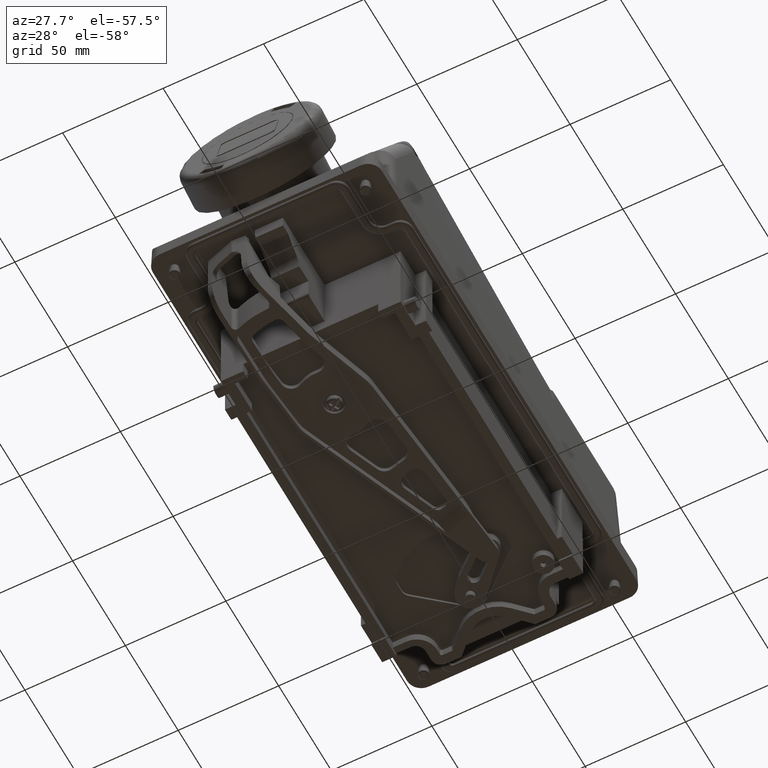
[diagram: clean part render]
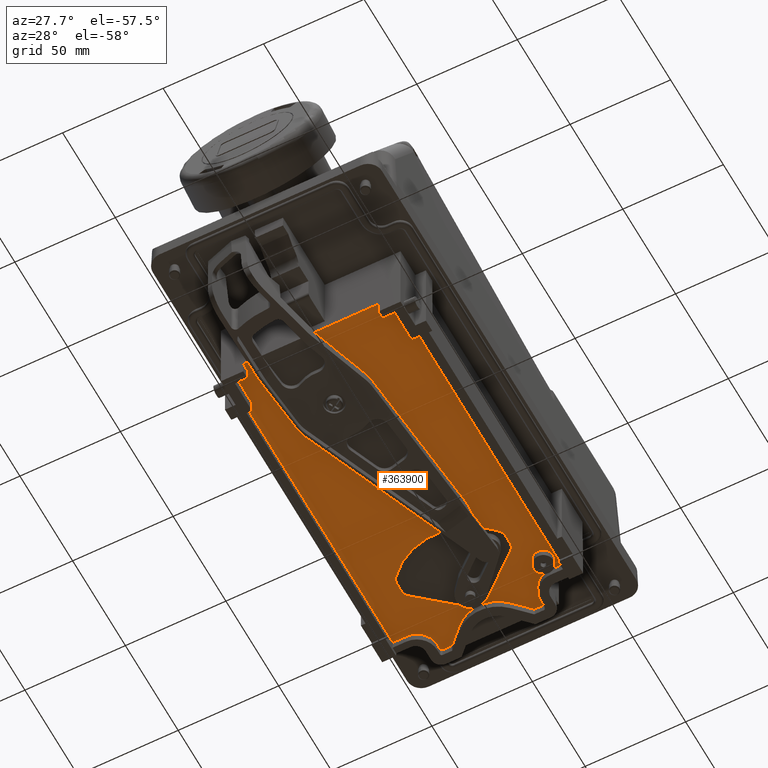
[diagram: same view with one face highlighted and labeled with its STEP entity id]
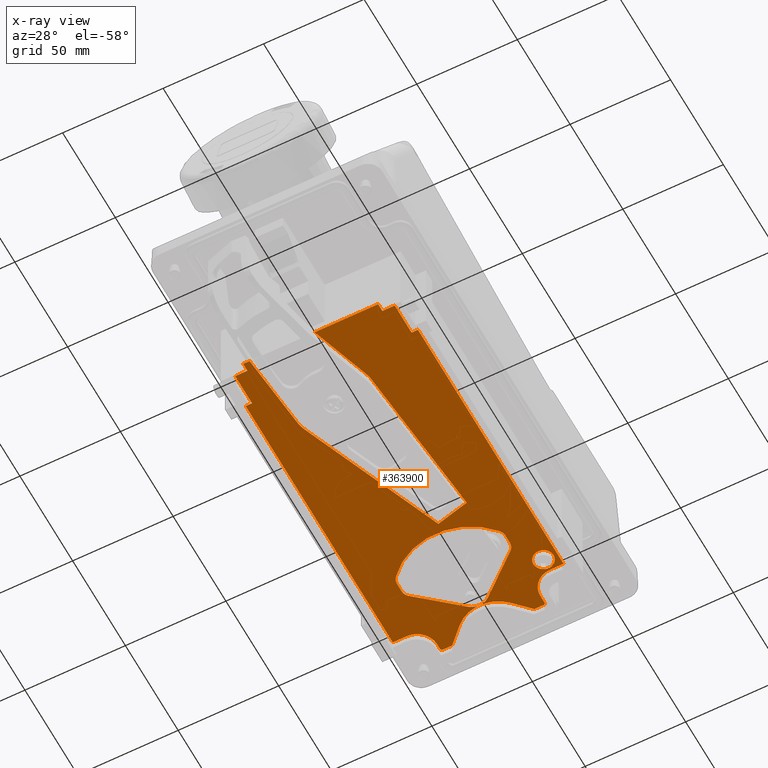
[diagram: x-ray of the same camera — body ghosted, the highlighted face saturated]
A machine part, auxiliary view. The second image highlights one B-rep face of the part: STEP entity #363900.
The next image is the same camera in x-ray: the body ghosted, the highlighted face saturated — about 0% of this face is hidden behind the body in this view.
In plain terms, the highlighted planar face has unit normal (-0, 0, -1).
Its self-contained STEP definition (entity closure, byte-faithful):
#333750=CARTESIAN_POINT('',(246.965079230504,157.433593340712,
-55.099987075025));
#333760=VERTEX_POINT('',#333750);
#333920=CARTESIAN_POINT('',(236.971170960314,147.43968507052,
-55.0999876456064));
#333930=VERTEX_POINT('',#333920);
#333960=CARTESIAN_POINT('',(236.958983787516,157.445780513508,
-55.099987074328));
#333970=DIRECTION('',(-1.13686833753624E-13,5.70930396309293E-8,
-0.999999999999999));
#333980=DIRECTION('',(-0.707106781186547,0.707106781186547,
4.03709558703135E-8));
#333990=AXIS2_PLACEMENT_3D('',#333960,#333970,#333980);
#334000=ELLIPSE('',#333990,10.0121871750572,10.);
#334010=EDGE_CURVE('',#333760,#333930,#334000,.T.);
#334180=CARTESIAN_POINT('',(247.965688774803,160.034313217746,
-55.0999869265421));
#334190=DIRECTION('',(-1.13686833753624E-13,5.70930396309293E-8,
-0.999999999999999));
#334200=DIRECTION('',(-0.7071067811863,0.707106781186794,
4.03709558703277E-8));
#334210=AXIS2_PLACEMENT_3D('',#334180,#334190,#334200);
#334220=ELLIPSE('',#334210,1.00121871750572,1.);
#334230=CARTESIAN_POINT('',(246.965079230504,160.035531935026,
-55.0999869264724));
#334240=VERTEX_POINT('',#334230);
#334250=CARTESIAN_POINT('',(247.964470057523,161.034922762045,
-55.0999868694142));
#334260=VERTEX_POINT('',#334250);
#334270=EDGE_CURVE('',#334240,#334260,#334220,.T.);
#339440=CARTESIAN_POINT('',(246.965079230513,64.999997299296,
-55.0999923523399));
#339450=DIRECTION('',(-9.43978205359926E-14,0.999999999999999,
5.70930396309293E-8));
#339460=VECTOR('',#339450,1.);
#339470=LINE('',#339440,#339460);
#339480=EDGE_CURVE('',#333760,#334240,#339470,.T.);
#339790=CARTESIAN_POINT('',(230.13968307796,147.43968507052,
-55.0999876456057));
#339800=VERTEX_POINT('',#339790);
#339830=CARTESIAN_POINT('',(272.999999999996,147.43968507052,
-55.0999876456105));
#339840=DIRECTION('',(1.,1.46737043050207E-15,-1.13686833669847E-13));
#339850=VECTOR('',#339840,1.);
#339860=LINE('',#339830,#339850);
#339870=EDGE_CURVE('',#339800,#333930,#339860,.T.);
#354980=CARTESIAN_POINT('',(315.182653198421,84.3463649312023,
-55.0999912478048));
#354990=DIRECTION('',(-1.13686833753624E-13,5.70930396309293E-8,
-0.999999999999998));
#355000=DIRECTION('',(-1.,1.18329135783152E-30,1.13686833753624E-13));
#355010=AXIS2_PLACEMENT_3D('',#354980,#354990,#355000);
#355020=PLANE('',#355010);
#360440=CARTESIAN_POINT('',(250.02155199652,64.999997299296,
-55.0999923523403));
#360450=DIRECTION('',(-0.0958457525202243,-0.995396198367178,
-5.68301837089126E-8));
#360460=VECTOR('',#360450,1.);
#360470=LINE('',#360440,#360460);
#360480=CARTESIAN_POINT('',(246.230916743164,25.6327450072269,
-55.0999945999359));
#360490=VERTEX_POINT('',#360480);
#360500=CARTESIAN_POINT('',(242.608947136,-11.9828475753637,
-55.0999967475241));
#360510=VERTEX_POINT('',#360500);
#360520=EDGE_CURVE('',#360490,#360510,#360470,.T.);
#360530=ORIENTED_EDGE('',*,*,#360520,.T.);
#360540=CARTESIAN_POINT('',(266.14547015612,23.7131493491701,
-55.0999947095338));
#360550=DIRECTION('',(-1.13686833753624E-13,5.70930396309293E-8,
-0.999999999999999));
#360560=DIRECTION('',(-0.970571550954791,0.240812924232092,
1.37488521680294E-8));
#360570=AXIS2_PLACEMENT_3D('',#360540,#360550,#360560);
#360580=ELLIPSE('',#360570,20.0070065686382,19.9999999999999);
#360590=CARTESIAN_POINT('',(247.643321584234,31.3252964412703,
-55.099994274931));
#360600=VERTEX_POINT('',#360590);
#360610=EDGE_CURVE('',#360490,#360600,#360580,.T.);
#360620=ORIENTED_EDGE('',*,*,#360610,.F.);
#360630=CARTESIAN_POINT('',(261.501755463383,64.9999972992961,
-55.0999923523416));
#360640=DIRECTION('',(0.380570892416668,0.924751748224992,
5.27968449545856E-8));
#360650=VECTOR('',#360640,1.);
#360660=LINE('',#360630,#360650);
#360670=CARTESIAN_POINT('',(276.704100675635,101.940277263635,
-55.0999902433104));
#360680=VERTEX_POINT('',#360670);
#360690=EDGE_CURVE('',#360600,#360680,#360660,.T.);
#360700=ORIENTED_EDGE('',*,*,#360690,.F.);
#360710=CARTESIAN_POINT('',(272.999999999996,102.854930285467,
-55.0999901910897));
#360720=DIRECTION('',(-0.970839767575187,0.239729317553269,
1.36869857895501E-8));
#360730=VECTOR('',#360720,1.);
#360740=LINE('',#360710,#360730);
#360750=CARTESIAN_POINT('',(292.922399878943,97.9354950846003,
-55.0999904719575));
#360760=VERTEX_POINT('',#360750);
#360770=EDGE_CURVE('',#360760,#360680,#360740,.T.);
#360780=ORIENTED_EDGE('',*,*,#360770,.T.);
#360790=CARTESIAN_POINT('',(289.825270402863,64.9999972992961,
-55.0999923523448));
#360800=DIRECTION('',(-0.0936231778624256,-0.995607704152061,
-5.68422594642578E-8));
#360810=VECTOR('',#360800,1.);
#360820=LINE('',#360790,#360810);
#360830=CARTESIAN_POINT('',(285.772820692969,21.9054320006413,
-55.0999948127441));
#360840=VERTEX_POINT('',#360830);
#360850=EDGE_CURVE('',#360760,#360840,#360820,.T.);
#360860=ORIENTED_EDGE('',*,*,#360850,.F.);
#360870=CARTESIAN_POINT('',(265.853988562439,23.7801079832119,
-55.0999947057109));
#360880=DIRECTION('',(-1.13686833753624E-13,5.70930396309293E-8,
-0.999999999999999));
#360890=DIRECTION('',(-0.978379084729027,0.206819647434163,
1.18080735562339E-8));
#360900=AXIS2_PLACEMENT_3D('',#360870,#360880,#360890);
#360910=ELLIPSE('',#360900,20.0069466076446,19.9999999999999);
#360920=CARTESIAN_POINT('',(284.827463775304,17.4333354309106,
-55.0999950680695));
#360930=VERTEX_POINT('',#360920);
#360940=EDGE_CURVE('',#360840,#360930,#360910,.T.);
#360950=ORIENTED_EDGE('',*,*,#360940,.F.);
#360960=CARTESIAN_POINT('',(300.743046200804,64.9999972992961,
-55.099992352346));
#360970=DIRECTION('',(-0.317304656405091,-0.948323655206199,
-5.4142643964838E-8));
#360980=VECTOR('',#360970,1.);
#360990=LINE('',#360960,#360980);
#361000=CARTESIAN_POINT('',(274.984946623788,-11.9828475753637,
-55.0999967475277));
#361010=VERTEX_POINT('',#361000);
#361020=EDGE_CURVE('',#360930,#361010,#360990,.T.);
#361030=ORIENTED_EDGE('',*,*,#361020,.F.);
#361040=CARTESIAN_POINT('',(272.999999999996,-11.9828475753637,
-55.0999967475275));
#361050=DIRECTION('',(-1.,1.97215226305253E-31,1.13686833753624E-13));
#361060=VECTOR('',#361050,1.);
#361070=LINE('',#361040,#361060);
#361080=CARTESIAN_POINT('',(306.569841538969,-11.9828475753637,
-55.0999967475313));
#361090=VERTEX_POINT('',#361080);
#361100=EDGE_CURVE('',#361090,#361010,#361070,.T.);
#361110=ORIENTED_EDGE('',*,*,#361100,.T.);
#361120=CARTESIAN_POINT('',(306.569841538969,64.9999972992961,
-55.0999923523467));
#361130=DIRECTION('',(-6.48816615676213E-21,-0.999999999999999,
-5.70930396309293E-8));
#361140=VECTOR('',#361130,1.);
#361150=LINE('',#361120,#361140);
#361160=CARTESIAN_POINT('',(306.569841538969,-7.98284757536365,
-55.0999965191616));
#361170=VERTEX_POINT('',#361160);
#361180=EDGE_CURVE('',#361170,#361090,#361150,.T.);
#361190=ORIENTED_EDGE('',*,*,#361180,.T.);
#361200=CARTESIAN_POINT('',(312.699999999996,-7.98284757536364,
-55.0999965191623));
#361210=DIRECTION('',(-1.,3.94430452610506E-31,1.13686833753624E-13));
#361220=VECTOR('',#361210,1.);
#361230=LINE('',#361200,#361220);
#361240=CARTESIAN_POINT('',(312.699999999996,-7.98284757536365,
-55.0999965191623));
#361250=VERTEX_POINT('',#361240);
#361260=EDGE_CURVE('',#361250,#361170,#361230,.T.);
#361270=ORIENTED_EDGE('',*,*,#361260,.T.);
#361280=CARTESIAN_POINT('',(312.699999999996,10.7033878673627,
-55.0999954523078));
#361290=DIRECTION('',(-6.49073014343907E-21,-0.999999999999999,
-5.70930681183662E-8));
#361300=VECTOR('',#361290,1.);
#361310=LINE('',#361280,#361300);
#361320=CARTESIAN_POINT('',(312.699999999996,8.00000199255162,
-55.0999956066524));
#361330=VERTEX_POINT('',#361320);
#361340=EDGE_CURVE('',#361330,#361250,#361310,.T.);
#361350=ORIENTED_EDGE('',*,*,#361340,.T.);
#361360=CARTESIAN_POINT('',(272.999999999996,8.00000199255161,
-55.0999956066459));
#361370=DIRECTION('',(-1.,1.77493703674728E-30,1.13686833753624E-13));
#361380=VECTOR('',#361370,1.);
#361390=LINE('',#361360,#361380);
#361400=CARTESIAN_POINT('',(315.860316922027,8.00000199255161,
-55.0999956066508));
#361410=VERTEX_POINT('',#361400);
#361420=EDGE_CURVE('',#361410,#361330,#361390,.T.);
#361430=ORIENTED_EDGE('',*,*,#361420,.T.);
#361440=CARTESIAN_POINT('',(315.860316922027,64.9999972992961,
-55.0999923523478));
#361450=DIRECTION('',(1.56307688532937E-16,0.999999999999999,
5.70930396309293E-8));
#361460=VECTOR('',#361450,1.);
#361470=LINE('',#361440,#361460);
#361480=CARTESIAN_POINT('',(315.860316922027,146.034922762045,
-55.0999877258176));
#361490=VERTEX_POINT('',#361480);
#361500=EDGE_CURVE('',#361410,#361490,#361470,.T.);
#361510=ORIENTED_EDGE('',*,*,#361500,.F.);
#361520=CARTESIAN_POINT('',(272.999999999996,146.034922762045,
-55.0999877258127));
#361530=DIRECTION('',(1.,7.40077285064861E-19,-1.13686833753582E-13));
#361540=VECTOR('',#361530,1.);
#361550=LINE('',#361520,#361540);
#361560=CARTESIAN_POINT('',(309.028829039677,146.034922762045,
-55.0999877258168));
#361570=VERTEX_POINT('',#361560);
#361580=EDGE_CURVE('',#361570,#361490,#361550,.T.);
#361590=ORIENTED_EDGE('',*,*,#361580,.T.);
#361600=CARTESIAN_POINT('',(309.041016212475,156.041018205033,
-55.0999871545384));
#361610=DIRECTION('',(-1.13686833753624E-13,5.70930396309293E-8,
-0.999999999999999));
#361620=DIRECTION('',(0.707106781186249,0.707106781186845,
4.03707950928684E-8));
#361630=AXIS2_PLACEMENT_3D('',#361600,#361610,#361620);
#361640=ELLIPSE('',#361630,10.0121871750572,10.);
#361650=CARTESIAN_POINT('',(299.034920769486,156.028831032236,
-55.099987155233));
#361660=VERTEX_POINT('',#361650);
#361670=EDGE_CURVE('',#361570,#361660,#361640,.T.);
#361680=ORIENTED_EDGE('',*,*,#361670,.F.);
#361690=CARTESIAN_POINT('',(299.034920769486,64.9999972992961,
-55.0999923523459));
#361700=DIRECTION('',(-4.5649801101243E-18,-0.999999999999999,
-5.70930396309293E-8));
#361710=VECTOR('',#361700,1.);
#361720=LINE('',#361690,#361710);
#361730=CARTESIAN_POINT('',(299.034920769486,160.035531935026,
-55.0999869264783));
#361740=VERTEX_POINT('',#361730);
#361750=EDGE_CURVE('',#361740,#361660,#361720,.T.);
#361760=ORIENTED_EDGE('',*,*,#361750,.T.);
#361770=CARTESIAN_POINT('',(298.034311225188,160.034313217746,
-55.0999869265478));
#361780=DIRECTION('',(-1.13686833753624E-13,5.70930396309293E-8,
-0.999999999999999));
#361790=DIRECTION('',(0.707106781186268,0.707106781186827,
4.03707950928673E-8));
#361800=AXIS2_PLACEMENT_3D('',#361770,#361780,#361790);
#361810=ELLIPSE('',#361800,1.00121871750572,1.);
#361820=CARTESIAN_POINT('',(298.035529942467,161.034922762045,
-55.0999868694199));
#361830=VERTEX_POINT('',#361820);
#361840=EDGE_CURVE('',#361830,#361740,#361810,.T.);
#361850=ORIENTED_EDGE('',*,*,#361840,.T.);
#361860=CARTESIAN_POINT('',(272.999999999996,161.034922762045,
-55.0999868694171));
#361870=DIRECTION('',(1.,1.46811050778714E-15,-1.13686833669805E-13));
#361880=VECTOR('',#361870,1.);
#361890=LINE('',#361860,#361880);
#361900=CARTESIAN_POINT('',(293.855340701042,161.034922762045,
-55.0999868694195));
#361910=VERTEX_POINT('',#361900);
#361920=EDGE_CURVE('',#361910,#361830,#361890,.T.);
#361930=ORIENTED_EDGE('',*,*,#361920,.T.);
#361940=CARTESIAN_POINT('',(293.855845510268,160.034313217746,
-55.0999869265473));
#361950=DIRECTION('',(-1.13686833753624E-13,5.70930396309293E-8,
-0.999999999999999));
#361960=DIRECTION('',(-0.382683432364957,0.923879532511341,
5.27471342699423E-8));
#361970=AXIS2_PLACEMENT_3D('',#361940,#361950,#361960);
#361980=ELLIPSE('',#361970,1.00071408825133,1.);
#361990=CARTESIAN_POINT('',(293.148664670201,160.742207965867,
-55.0999868861313));
#362000=VERTEX_POINT('',#361990);
#362010=EDGE_CURVE('',#362000,#361910,#361980,.T.);
#362020=ORIENTED_EDGE('',*,*,#362010,.T.);
#362030=CARTESIAN_POINT('',(272.999999999996,140.593543295661,
-55.0999880364776));
#362040=DIRECTION('',(0.707106781186546,0.707106781186548,
4.0370795124849E-8));
#362050=VECTOR('',#362040,1.);
#362060=LINE('',#362030,#362050);
#362070=CARTESIAN_POINT('',(285.703229348442,153.296772644107,
-55.099987311213));
#362080=VERTEX_POINT('',#362070);
#362090=EDGE_CURVE('',#362080,#362000,#362060,.T.);
#362100=ORIENTED_EDGE('',*,*,#362090,.T.);
#362110=CARTESIAN_POINT('',(272.999999999996,166.000001992553,
-55.0999865859457));
#362120=DIRECTION('',(1.1366564071304E-13,-5.70930397643204E-8,
0.999999999999999));
#362130=DIRECTION('',(-1.,-1.4673704292921E-15,1.13665640629263E-13));
#362140=AXIS2_PLACEMENT_3D('',#362110,#362120,#362130);
#362150=CIRCLE('',#362140,17.9650792305082);
#362160=CARTESIAN_POINT('',(260.29677065155,153.296772644107,
-55.0999873112101));
#362170=VERTEX_POINT('',#362160);
#362180=EDGE_CURVE('',#362170,#362080,#362150,.T.);
#362190=ORIENTED_EDGE('',*,*,#362180,.T.);
#362200=CARTESIAN_POINT('',(272.999999999996,140.593543295661,
-55.0999880364776));
#362210=DIRECTION('',(0.707106781186548,-0.707106781186546,
-4.03709558715763E-8));
#362220=VECTOR('',#362210,1.);
#362230=LINE('',#362200,#362220);
#362240=CARTESIAN_POINT('',(252.85133532979,160.742207965867,
-55.0999868861268));
#362250=VERTEX_POINT('',#362240);
#362260=EDGE_CURVE('',#362250,#362170,#362230,.T.);
#362270=ORIENTED_EDGE('',*,*,#362260,.T.);
#362280=CARTESIAN_POINT('',(252.144154489724,160.034313217746,
-55.0999869265426));
#362290=DIRECTION('',(-1.13686833753624E-13,5.70930396309293E-8,
-0.999999999999999));
#362300=DIRECTION('',(0.382683432364955,0.923879532511341,
5.27470472578068E-8));
#362310=AXIS2_PLACEMENT_3D('',#362280,#362290,#362300);
#362320=ELLIPSE('',#362310,1.00071408825133,1.);
#362330=CARTESIAN_POINT('',(252.14465929895,161.034922762045,
-55.0999868694147));
#362340=VERTEX_POINT('',#362330);
#362350=EDGE_CURVE('',#362340,#362250,#362320,.T.);
#362360=ORIENTED_EDGE('',*,*,#362350,.T.);
#362370=EDGE_CURVE('',#334260,#362340,#361890,.T.);
#362380=ORIENTED_EDGE('',*,*,#362370,.T.);
#362390=ORIENTED_EDGE('',*,*,#334270,.T.);
#362400=ORIENTED_EDGE('',*,*,#339480,.T.);
#362410=ORIENTED_EDGE('',*,*,#334010,.F.);
#362420=ORIENTED_EDGE('',*,*,#339870,.T.);
#362430=CARTESIAN_POINT('',(230.13968307796,64.999997299296,
-55.099992352338));
#362440=DIRECTION('',(-1.88496064878781E-15,0.999999999999999,
5.70930396309293E-8));
#362450=VECTOR('',#362440,1.);
#362460=LINE('',#362430,#362450);
#362470=CARTESIAN_POINT('',(230.13968307796,8.00000199255162,
-55.099995606641));
#362480=VERTEX_POINT('',#362470);
#362490=EDGE_CURVE('',#362480,#339800,#362460,.T.);
#362500=ORIENTED_EDGE('',*,*,#362490,.T.);
#362510=CARTESIAN_POINT('',(272.999999999996,8.00000199255161,
-55.0999956066459));
#362520=DIRECTION('',(-1.,1.77493703674728E-30,1.13686833753624E-13));
#362530=VECTOR('',#362520,1.);
#362540=LINE('',#362510,#362530);
#362550=CARTESIAN_POINT('',(233.299999999996,8.00000199255161,
-55.0999956066434));
#362560=VERTEX_POINT('',#362550);
#362570=EDGE_CURVE('',#362560,#362480,#362540,.T.);
#362580=ORIENTED_EDGE('',*,*,#362570,.T.);
#362590=CARTESIAN_POINT('',(233.299999999996,-7.98284757536364,
-55.0999965191533));
#362600=DIRECTION('',(6.49073014343907E-21,0.999999999999999,
5.70930681183662E-8));
#362610=VECTOR('',#362600,1.);
#362620=LINE('',#362590,#362610);
#362630=CARTESIAN_POINT('',(233.299999999996,-7.98284757536364,
-55.0999965191533));
#362640=VERTEX_POINT('',#362630);
#362650=EDGE_CURVE('',#362640,#362560,#362620,.T.);
#362660=ORIENTED_EDGE('',*,*,#362650,.T.);
#362670=CARTESIAN_POINT('',(239.43015846101,-7.98284757536365,
-55.099996519154));
#362680=VERTEX_POINT('',#362670);
#362690=EDGE_CURVE('',#362680,#362640,#361230,.T.);
#362700=ORIENTED_EDGE('',*,*,#362690,.T.);
#362710=CARTESIAN_POINT('',(239.43015846101,64.999997299296,
-55.0999923523391));
#362720=DIRECTION('',(6.48816615676213E-21,0.999999999999999,
5.70930396309293E-8));
#362730=VECTOR('',#362720,1.);
#362740=LINE('',#362710,#362730);
#362750=CARTESIAN_POINT('',(239.43015846101,-11.9828475753637,
-55.0999967475237));
#362760=VERTEX_POINT('',#362750);
#362770=EDGE_CURVE('',#362760,#362680,#362740,.T.);
#362780=ORIENTED_EDGE('',*,*,#362770,.T.);
#362790=EDGE_CURVE('',#360510,#362760,#361070,.T.);
#362800=ORIENTED_EDGE('',*,*,#362790,.T.);
#362810=EDGE_LOOP('',(#362800,#362780,#362700,#362660,#362580,#362500,
#362420,#362410,#362400,#362390,#362380,#362360,#362270,#362190,#362100,
#362020,#361930,#361850,#361760,#361680,#361590,#361510,#361430,#361350,
#361270,#361190,#361110,#361030,#360950,#360860,#360780,#360700,#360620,
#360530));
#362820=FACE_OUTER_BOUND('',#362810,.T.);
#362830=CARTESIAN_POINT('',(308.999999999995,140.000001992553,
-55.0999880703687));
#362840=DIRECTION('',(1.13686833753624E-13,-5.70930680526388E-8,
0.999999999999999));
#362850=DIRECTION('',(1.,-4.53595020502082E-30,-1.13686833753624E-13));
#362860=AXIS2_PLACEMENT_3D('',#362830,#362840,#362850);
#362870=CIRCLE('',#362860,5.);
#362880=CARTESIAN_POINT('',(313.999999999995,140.000001992553,
-55.0999880703693));
#362890=VERTEX_POINT('',#362880);
#362900=CARTESIAN_POINT('',(303.999999999995,140.000001992553,
-55.0999880703682));
#362910=VERTEX_POINT('',#362900);
#362920=EDGE_CURVE('',#362890,#362910,#362870,.T.);
#362930=ORIENTED_EDGE('',*,*,#362920,.T.);
#362940=CARTESIAN_POINT('',(312.569841538979,136.499111907654,
-55.0999882702457));
#362950=VERTEX_POINT('',#362940);
#362960=EDGE_CURVE('',#362950,#362890,#362870,.T.);
#362970=ORIENTED_EDGE('',*,*,#362960,.T.);
#362980=EDGE_CURVE('',#362910,#362950,#362870,.T.);
#362990=ORIENTED_EDGE('',*,*,#362980,.T.);
#363000=EDGE_LOOP('',(#362990,#362970,#362930));
#363010=FACE_BOUND('',#363000,.T.);
#363020=CARTESIAN_POINT('',(272.999999999996,140.000001992553,
-55.0999880703647));
#363030=DIRECTION('',(1.13686833753624E-13,-5.70930396309293E-8,
0.999999999999999));
#363040=DIRECTION('',(1.,-3.54987407349455E-30,-1.13686833753624E-13));
#363050=AXIS2_PLACEMENT_3D('',#363020,#363030,#363040);
#363060=CIRCLE('',#363050,34.);
#363070=CARTESIAN_POINT('',(247.20689655172,117.847895670433,
-55.0999893350928));
#363080=VERTEX_POINT('',#363070);
#363090=CARTESIAN_POINT('',(298.793103448272,117.847895670432,
-55.0999893350987));
#363100=VERTEX_POINT('',#363090);
#363110=EDGE_CURVE('',#363080,#363100,#363060,.T.);
#363120=ORIENTED_EDGE('',*,*,#363110,.T.);
#363130=CARTESIAN_POINT('',(250.999999999996,121.105558364862,
-55.0999891491034));
#363140=DIRECTION('',(1.13686833753624E-13,-5.70930396309293E-8,
0.999999999999999));
#363150=DIRECTION('',(1.46736393977516E-15,-0.999999999999999,
-5.70930396309293E-8));
#363160=AXIS2_PLACEMENT_3D('',#363130,#363140,#363150);
#363170=CIRCLE('',#363160,5.);
#363180=CARTESIAN_POINT('',(245.999999999996,121.105558364862,
-55.0999891491028));
#363190=VERTEX_POINT('',#363180);
#363200=EDGE_CURVE('',#363190,#363080,#363170,.T.);
#363210=ORIENTED_EDGE('',*,*,#363200,.T.);
#363220=CARTESIAN_POINT('',(245.999999999996,64.9999972422028,
-55.0999923523398));
#363230=DIRECTION('',(5.93653196475418E-17,0.999999999999999,
5.70930396309293E-8));
#363240=VECTOR('',#363230,1.);
#363250=LINE('',#363220,#363240);
#363260=CARTESIAN_POINT('',(245.999999999996,125.45603197465,
-55.099988900721));
#363270=VERTEX_POINT('',#363260);
#363280=EDGE_CURVE('',#363190,#363270,#363250,.T.);
#363290=ORIENTED_EDGE('',*,*,#363280,.F.);
#363300=CARTESIAN_POINT('',(250.999999999996,125.45603197465,
-55.0999889007216));
#363310=DIRECTION('',(1.13686833753624E-13,-5.70930396309293E-8,
0.999999999999999));
#363320=DIRECTION('',(1.46736393977516E-15,-0.999999999999999,
-5.70930396309293E-8));
#363330=AXIS2_PLACEMENT_3D('',#363300,#363310,#363320);
#363340=CIRCLE('',#363330,5.);
#363350=CARTESIAN_POINT('',(247.786061951563,129.286254190245,
-55.0999886820422));
#363360=VERTEX_POINT('',#363350);
#363370=EDGE_CURVE('',#363360,#363270,#363340,.T.);
#363380=ORIENTED_EDGE('',*,*,#363370,.T.);
#363390=CARTESIAN_POINT('',(272.999999999996,150.443260307212,
-55.0999874741273));
#363400=DIRECTION('',(0.766044443118978,0.642787609686539,
3.66986114364614E-8));
#363410=VECTOR('',#363400,1.);
#363420=LINE('',#363390,#363410);
#363430=CARTESIAN_POINT('',(267.857699122504,146.128357537505,
-55.0999877204776));
#363440=VERTEX_POINT('',#363430);
#363450=EDGE_CURVE('',#363360,#363440,#363420,.T.);
#363460=ORIENTED_EDGE('',*,*,#363450,.F.);
#363470=CARTESIAN_POINT('',(272.999999999996,140.000001992553,
-55.0999880703647));
#363480=DIRECTION('',(-1.13686833753624E-13,5.70930396309293E-8,
-0.999999999999999));
#363490=DIRECTION('',(1.,1.46737043050207E-15,-1.13686833669847E-13));
#363500=AXIS2_PLACEMENT_3D('',#363470,#363480,#363490);
#363510=CIRCLE('',#363500,8.);
#363520=CARTESIAN_POINT('',(278.142300877488,146.128357537505,
-55.0999877204788));
#363530=VERTEX_POINT('',#363520);
#363540=EDGE_CURVE('',#363440,#363530,#363510,.T.);
#363550=ORIENTED_EDGE('',*,*,#363540,.F.);
#363560=CARTESIAN_POINT('',(272.999999999996,150.443260307212,
-55.0999874741273));
#363570=DIRECTION('',(0.766044443118978,-0.642787609686539,
-3.66987855654026E-8));
#363580=VECTOR('',#363570,1.);
#363590=LINE('',#363560,#363580);
#363600=CARTESIAN_POINT('',(298.213938048429,129.286254190245,
-55.0999886820479));
#363610=VERTEX_POINT('',#363600);
#363620=EDGE_CURVE('',#363530,#363610,#363590,.T.);
#363630=ORIENTED_EDGE('',*,*,#363620,.F.);
#363640=CARTESIAN_POINT('',(294.999999999996,125.45603197465,
-55.0999889007266));
#363650=DIRECTION('',(1.13686833753624E-13,-5.70930396309293E-8,
0.999999999999999));
#363660=DIRECTION('',(1.46736393977516E-15,-0.999999999999999,
-5.70930396309293E-8));
#363670=AXIS2_PLACEMENT_3D('',#363640,#363650,#363660);
#363680=CIRCLE('',#363670,5.);
#363690=CARTESIAN_POINT('',(299.999999999996,125.45603197465,
-55.0999889007272));
#363700=VERTEX_POINT('',#363690);
#363710=EDGE_CURVE('',#363700,#363610,#363680,.T.);
#363720=ORIENTED_EDGE('',*,*,#363710,.T.);
#363730=CARTESIAN_POINT('',(299.999999999996,64.9999972422029,
-55.099992352346));
#363740=DIRECTION('',(5.4291138268321E-16,-0.999999999999999,
-5.70930396309293E-8));
#363750=VECTOR('',#363740,1.);
#363760=LINE('',#363730,#363750);
#363770=CARTESIAN_POINT('',(299.999999999996,121.105558364862,
-55.0999891491089));
#363780=VERTEX_POINT('',#363770);
#363790=EDGE_CURVE('',#363700,#363780,#363760,.T.);
#363800=ORIENTED_EDGE('',*,*,#363790,.F.);
#363810=CARTESIAN_POINT('',(294.999999999996,121.105558364862,
-55.0999891491084));
#363820=DIRECTION('',(1.13686833753624E-13,-5.70930396309293E-8,
0.999999999999999));
#363830=DIRECTION('',(1.46736393977516E-15,-0.999999999999999,
-5.70930396309293E-8));
#363840=AXIS2_PLACEMENT_3D('',#363810,#363820,#363830);
#363850=CIRCLE('',#363840,5.);
#363860=EDGE_CURVE('',#363100,#363780,#363850,.T.);
#363870=ORIENTED_EDGE('',*,*,#363860,.T.);
#363880=EDGE_LOOP('',(#363870,#363800,#363720,#363630,#363550,#363460,
#363380,#363290,#363210,#363120));
#363890=FACE_BOUND('',#363880,.T.);
#363900=ADVANCED_FACE('',(#362820,#363010,#363890),#355020,.T.);